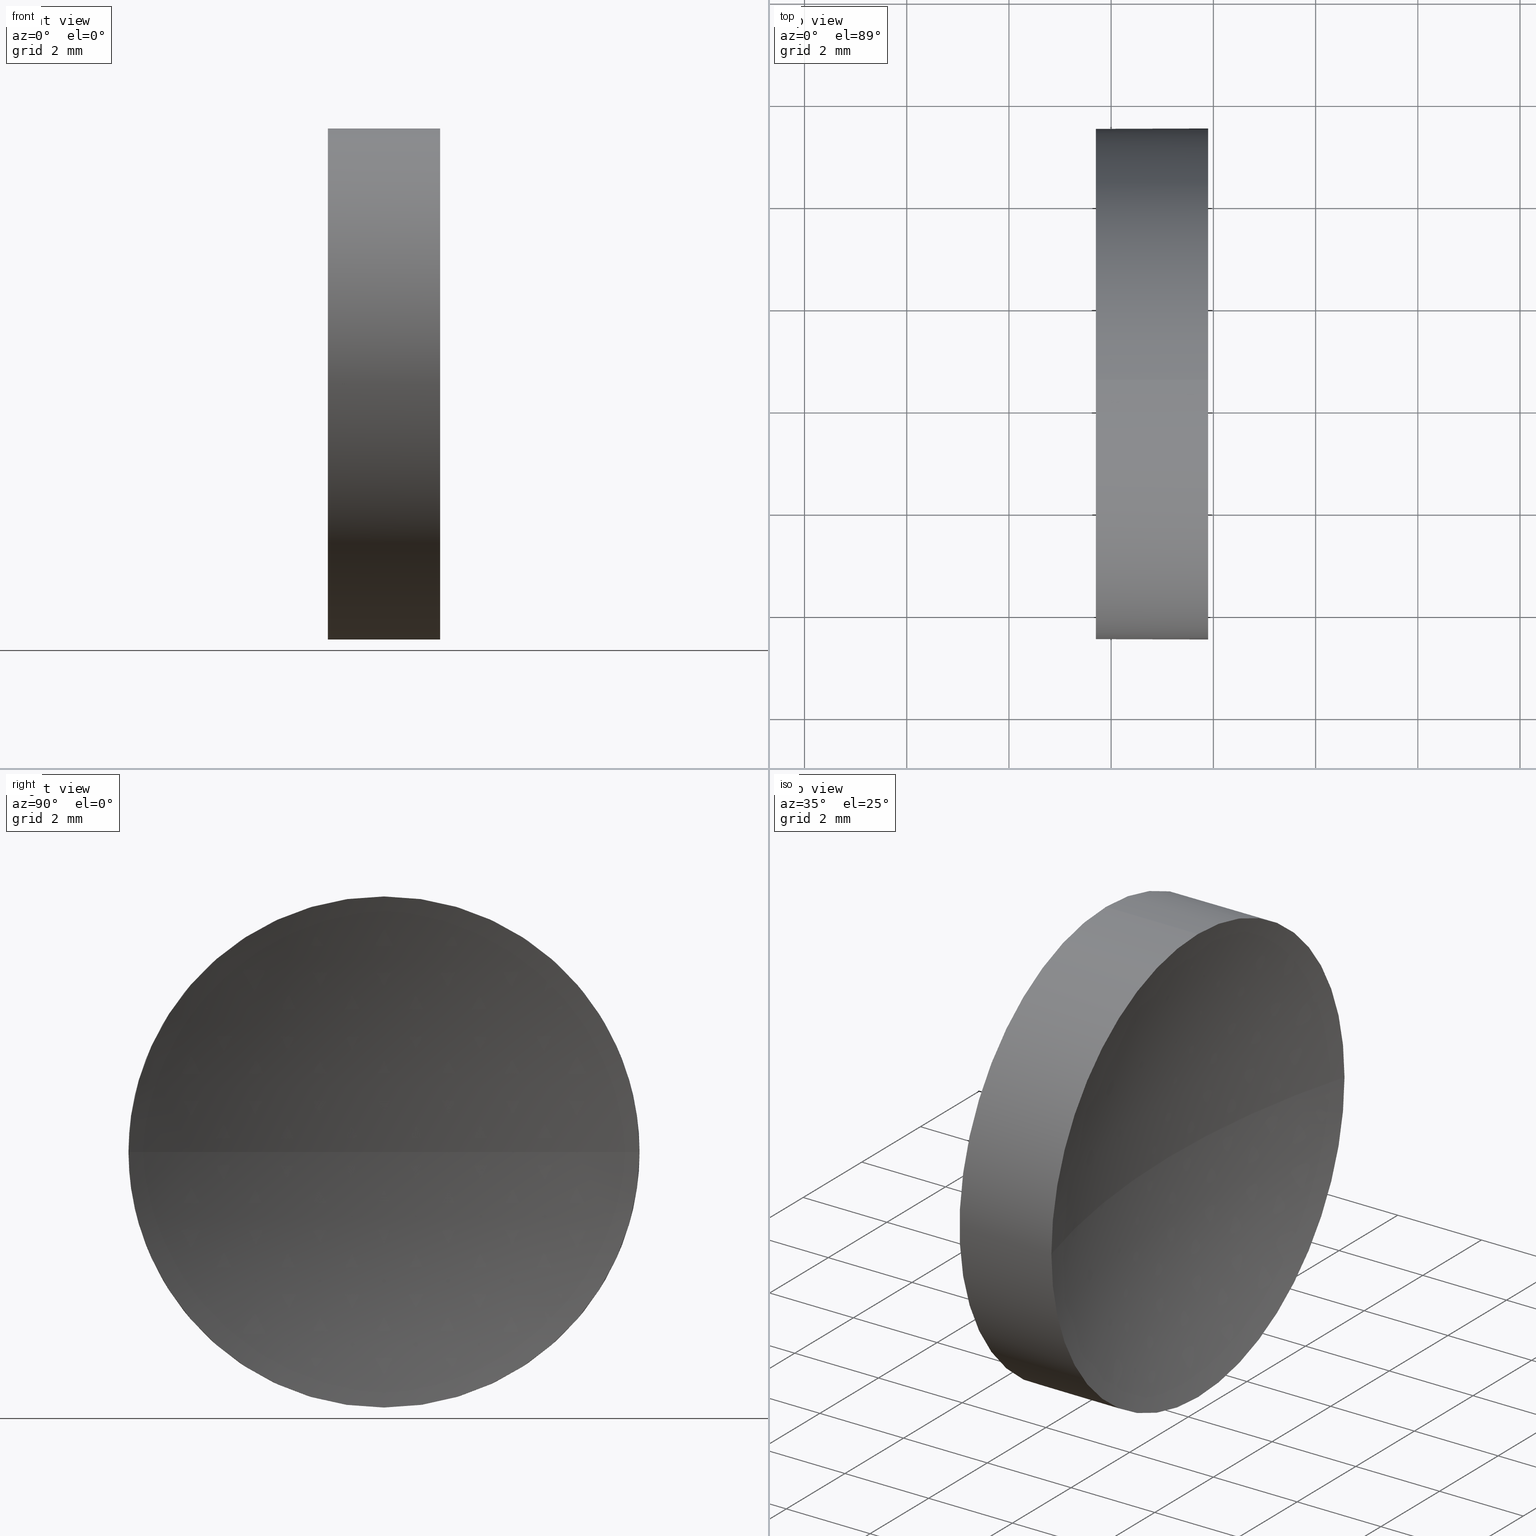
[diagram: canonical four-view strip — front | top / right | iso, engineering-drawing reading convention]
A machine part, canonical four-view strip (front | top / right | iso — engineering-drawing reading convention). The complete STEP part file that produces these views, byte-faithful:
ISO-10303-21;
HEADER;
FILE_DESCRIPTION (( 'STEP AP214' ),
    '1' );
FILE_NAME ('120255.STEP',
    '2019-06-25T01:15:55',
    ( '' ),
    ( '' ),
    'SwSTEP 2.0',
    'SolidWorks 2016',
    '' );
FILE_SCHEMA (( 'AUTOMOTIVE_DESIGN' ));
ENDSEC;

DATA;
#1 = ADVANCED_BREP_SHAPE_REPRESENTATION ( '120255', ( #156, #135 ), #66 ) ;
#2 = EDGE_CURVE ( 'NONE', #111, #73, #54, .T. ) ;
#3 = ORIENTED_EDGE ( 'NONE', *, *, #10, .F. ) ;
#4 = DIRECTION ( 'NONE',  ( -1.000000000000000000, -0.0000000000000000000, -0.0000000000000000000 ) ) ;
#5 = PRODUCT_RELATED_PRODUCT_CATEGORY ( 'part', '', ( #20 ) ) ;
#6 = PRESENTATION_STYLE_ASSIGNMENT (( #117 ) ) ;
#7 = EDGE_CURVE ( 'NONE', #159, #73, #11, .T. ) ;
#8 = CLOSED_SHELL ( 'NONE', ( #69, #98, #181, #83, #139 ) ) ;
#9 = DIRECTION ( 'NONE',  ( 0.0000000000000000000, 0.0000000000000000000, 1.000000000000000000 ) ) ;
#10 = EDGE_CURVE ( 'NONE', #107, #159, #15, .T. ) ;
#11 = LINE ( 'NONE', #175, #160 ) ;
#12 = EDGE_CURVE ( 'NONE', #107, #144, #126, .T. ) ;
#13 =( NAMED_UNIT ( * ) PLANE_ANGLE_UNIT ( ) SI_UNIT ( $, .RADIAN. ) );
#14 = PRODUCT_DEFINITION_CONTEXT ( 'detailed design', #112, 'design' ) ;
#15 = CIRCLE ( 'NONE', #37, 4.999999999999990200 ) ;
#16 = DIRECTION ( 'NONE',  ( 1.000000000000000000, 0.0000000000000000000, 0.0000000000000000000 ) ) ;
#17 = EDGE_CURVE ( 'NONE', #73, #111, #82, .T. ) ;
#18 = CARTESIAN_POINT ( 'NONE',  ( 49.20171121220714400, 28.47759563463747400, 0.0000000000000000000 ) ) ;
#19 = CARTESIAN_POINT ( 'NONE',  ( 49.89643989097209700, 28.47759563463748100, -4.999999999999990200 ) ) ;
#20 = PRODUCT ( '120255', '120255', '', ( #70 ) ) ;
#21 = DIRECTION ( 'NONE',  ( 0.0000000000000000000, 0.0000000000000000000, 1.000000000000000000 ) ) ;
#22 = CYLINDRICAL_SURFACE ( 'NONE', #97, 4.999999999999993800 ) ;
#23 = SHAPE_DEFINITION_REPRESENTATION ( #61, #1 ) ;
#24 = CARTESIAN_POINT ( 'NONE',  ( 49.89643989097209700, 28.47759563463748100, 4.999999999999990200 ) ) ;
#25 = DIRECTION ( 'NONE',  ( 0.0000000000000000000, 0.0000000000000000000, 1.000000000000000000 ) ) ;
#26 =( LENGTH_UNIT ( ) NAMED_UNIT ( * ) SI_UNIT ( .MILLI., .METRE. ) );
#27 = AXIS2_PLACEMENT_3D ( 'NONE', #168, #9, #105 ) ;
#28 = APPLICATION_PROTOCOL_DEFINITION ( 'draft international standard', 'automotive_design', 1998, #158 ) ;
#29 = CARTESIAN_POINT ( 'NONE',  ( 49.89643989097209700, 33.47759563463747400, 0.0000000000000000000 ) ) ;
#30 = CARTESIAN_POINT ( 'NONE',  ( 47.70171121220715100, 28.47759563463748100, 4.999999999999997300 ) ) ;
#31 =( LENGTH_UNIT ( ) NAMED_UNIT ( * ) SI_UNIT ( .MILLI., .METRE. ) );
#32 = EDGE_CURVE ( 'NONE', #159, #56, #89, .T. ) ;
#33 = EDGE_LOOP ( 'NONE', ( #149, #79, #76, #53 ) ) ;
#34 = CARTESIAN_POINT ( 'NONE',  ( 49.89643989097209700, 28.47759563463748100, 0.0000000000000000000 ) ) ;
#35 = UNCERTAINTY_MEASURE_WITH_UNIT (LENGTH_MEASURE( 1.000000000000000100E-005 ), #26, 'distance_accuracy_value', 'NONE');
#36 = CARTESIAN_POINT ( 'NONE',  ( 67.54171121220714700, 28.47759563463747400, 0.0000000000000000000 ) ) ;
#37 = AXIS2_PLACEMENT_3D ( 'NONE', #44, #172, #101 ) ;
#38 = DIRECTION ( 'NONE',  ( 0.0000000000000000000, 0.0000000000000000000, 1.000000000000000000 ) ) ;
#39 =( LENGTH_UNIT ( ) NAMED_UNIT ( * ) SI_UNIT ( .MILLI., .METRE. ) );
#40 =( NAMED_UNIT ( * ) SI_UNIT ( $, .STERADIAN. ) SOLID_ANGLE_UNIT ( ) );
#41 = AXIS2_PLACEMENT_3D ( 'NONE', #49, #174, #90 ) ;
#42 = ORIENTED_EDGE ( 'NONE', *, *, #10, .T. ) ;
#43 = VERTEX_POINT ( 'NONE', #24 ) ;
#44 = CARTESIAN_POINT ( 'NONE',  ( 49.89643989097209700, 28.47759563463748100, 0.0000000000000000000 ) ) ;
#45 = DIRECTION ( 'NONE',  ( -1.000000000000000000, -0.0000000000000000000, -0.0000000000000000000 ) ) ;
#46 = SURFACE_STYLE_FILL_AREA ( #92 ) ;
#47 =( NAMED_UNIT ( * ) SI_UNIT ( $, .STERADIAN. ) SOLID_ANGLE_UNIT ( ) );
#48 = MECHANICAL_DESIGN_GEOMETRIC_PRESENTATION_REPRESENTATION (  '', ( #171 ), #155 ) ;
#49 = CARTESIAN_POINT ( 'NONE',  ( 49.89643989097209700, 28.47759563463748100, 0.0000000000000000000 ) ) ;
#50 = CARTESIAN_POINT ( 'NONE',  ( 44.78209190302423800, 28.47759563463748100, 4.999999999999993800 ) ) ;
#51 = ORIENTED_EDGE ( 'NONE', *, *, #178, .F. ) ;
#52 = ORIENTED_EDGE ( 'NONE', *, *, #32, .F. ) ;
#53 = ORIENTED_EDGE ( 'NONE', *, *, #183, .F. ) ;
#54 = CIRCLE ( 'NONE', #122, 4.999999999999997300 ) ;
#55 = DIRECTION ( 'NONE',  ( -1.000000000000000000, -0.0000000000000000000, -0.0000000000000000000 ) ) ;
#56 = VERTEX_POINT ( 'NONE', #114 ) ;
#57 = SPHERICAL_SURFACE ( 'NONE', #109, 18.34000000000000300 ) ;
#58 = PRESENTATION_LAYER_ASSIGNMENT (  '', '', ( #171 ) ) ;
#59 = CIRCLE ( 'NONE', #41, 4.999999999999990200 ) ;
#60 = AXIS2_PLACEMENT_3D ( 'NONE', #74, #45, #177 ) ;
#61 = PRODUCT_DEFINITION_SHAPE ( 'NONE', 'NONE',  #151 ) ;
#62 = DIRECTION ( 'NONE',  ( 0.0000000000000000000, 0.0000000000000000000, 1.000000000000000000 ) ) ;
#63 = DIRECTION ( 'NONE',  ( 0.0000000000000000000, 1.000000000000000000, 0.0000000000000000000 ) ) ;
#64 = SURFACE_SIDE_STYLE ('',( #46 ) ) ;
#65 = DIRECTION ( 'NONE',  ( 0.0000000000000000000, 0.0000000000000000000, -1.000000000000000000 ) ) ;
#66 =( GEOMETRIC_REPRESENTATION_CONTEXT ( 3 ) GLOBAL_UNCERTAINTY_ASSIGNED_CONTEXT ( ( #35 ) ) GLOBAL_UNIT_ASSIGNED_CONTEXT ( ( #26, #13, #110 ) ) REPRESENTATION_CONTEXT ( 'NONE', 'WORKASPACE' ) );
#67 = CARTESIAN_POINT ( 'NONE',  ( 47.70171121220715100, 28.47759563463748100, 0.0000000000000000000 ) ) ;
#68 =( NAMED_UNIT ( * ) PLANE_ANGLE_UNIT ( ) SI_UNIT ( $, .RADIAN. ) );
#69 = ADVANCED_FACE ( 'NONE', ( #154 ), #22, .T. ) ;
#70 = PRODUCT_CONTEXT ( 'NONE', #158, 'mechanical' ) ;
#71 = CARTESIAN_POINT ( 'NONE',  ( 44.78209190302423800, 28.47759563463748100, 0.0000000000000000000 ) ) ;
#72 = EDGE_LOOP ( 'NONE', ( #152, #52, #3, #145 ) ) ;
#73 = VERTEX_POINT ( 'NONE', #134 ) ;
#74 = CARTESIAN_POINT ( 'NONE',  ( 44.78209190302423800, 28.47759563463748100, 0.0000000000000000000 ) ) ;
#75 = STYLED_ITEM ( 'NONE', ( #99 ), #1 ) ;
#76 = ORIENTED_EDGE ( 'NONE', *, *, #12, .F. ) ;
#77 = COLOUR_RGB ( '',1.000000000000000000, 1.000000000000000000, 1.000000000000000000 ) ;
#78 = EDGE_LOOP ( 'NONE', ( #142, #87 ) ) ;
#79 = ORIENTED_EDGE ( 'NONE', *, *, #148, .T. ) ;
#80 =( GEOMETRIC_REPRESENTATION_CONTEXT ( 3 ) GLOBAL_UNCERTAINTY_ASSIGNED_CONTEXT ( ( #91 ) ) GLOBAL_UNIT_ASSIGNED_CONTEXT ( ( #39, #68, #40 ) ) REPRESENTATION_CONTEXT ( 'NONE', 'WORKASPACE' ) );
#81 = LINE ( 'NONE', #50, #88 ) ;
#82 = CIRCLE ( 'NONE', #137, 4.999999999999997300 ) ;
#83 = ADVANCED_FACE ( 'NONE', ( #169 ), #131, .T. ) ;
#84 = FILL_AREA_STYLE ('',( #129 ) ) ;
#85 = MECHANICAL_DESIGN_GEOMETRIC_PRESENTATION_REPRESENTATION (  '', ( #75 ), #80 ) ;
#86 = ORIENTED_EDGE ( 'NONE', *, *, #183, .T. ) ;
#87 = ORIENTED_EDGE ( 'NONE', *, *, #17, .T. ) ;
#88 = VECTOR ( 'NONE', #102, 1000.000000000000000 ) ;
#89 = CIRCLE ( 'NONE', #133, 4.999999999999990200 ) ;
#90 = DIRECTION ( 'NONE',  ( 0.0000000000000000000, 0.0000000000000000000, 1.000000000000000000 ) ) ;
#91 = UNCERTAINTY_MEASURE_WITH_UNIT (LENGTH_MEASURE( 1.000000000000000100E-005 ), #39, 'distance_accuracy_value', 'NONE');
#92 = FILL_AREA_STYLE ('',( #132 ) ) ;
#93 = COLOUR_RGB ( '',1.000000000000000000, 1.000000000000000000, 1.000000000000000000 ) ;
#94 = FACE_OUTER_BOUND ( 'NONE', #33, .T. ) ;
#95 = PRODUCT_DEFINITION_FORMATION_WITH_SPECIFIED_SOURCE ( '�κ�', '', #20, .NOT_KNOWN. ) ;
#96 = DIRECTION ( 'NONE',  ( -1.000000000000000000, -0.0000000000000000000, -0.0000000000000000000 ) ) ;
#97 = AXIS2_PLACEMENT_3D ( 'NONE', #71, #96, #25 ) ;
#98 = ADVANCED_FACE ( 'NONE', ( #94 ), #120, .F. ) ;
#99 = PRESENTATION_STYLE_ASSIGNMENT (( #182 ) ) ;
#100 = DIRECTION ( 'NONE',  ( 1.000000000000000000, 0.0000000000000000000, 0.0000000000000000000 ) ) ;
#101 = DIRECTION ( 'NONE',  ( 0.0000000000000000000, 0.0000000000000000000, 1.000000000000000000 ) ) ;
#102 = DIRECTION ( 'NONE',  ( -1.000000000000000000, -0.0000000000000000000, -0.0000000000000000000 ) ) ;
#103 = AXIS2_PLACEMENT_3D ( 'NONE', #36, #104, #165 ) ;
#104 = DIRECTION ( 'NONE',  ( 0.0000000000000000000, 0.0000000000000000000, -1.000000000000000000 ) ) ;
#105 = DIRECTION ( 'NONE',  ( 1.000000000000000000, 0.0000000000000000000, 0.0000000000000000000 ) ) ;
#106 = ORIENTED_EDGE ( 'NONE', *, *, #140, .T. ) ;
#107 = VERTEX_POINT ( 'NONE', #29 ) ;
#108 = SURFACE_SIDE_STYLE ('',( #138 ) ) ;
#109 = AXIS2_PLACEMENT_3D ( 'NONE', #173, #65, #63 ) ;
#110 =( NAMED_UNIT ( * ) SI_UNIT ( $, .STERADIAN. ) SOLID_ANGLE_UNIT ( ) );
#111 = VERTEX_POINT ( 'NONE', #30 ) ;
#112 = APPLICATION_CONTEXT ( 'automotive_design' ) ;
#113 = ORIENTED_EDGE ( 'NONE', *, *, #17, .F. ) ;
#114 = CARTESIAN_POINT ( 'NONE',  ( 49.89643989097209700, 23.47759563463748500, -6.123233995736754400E-016 ) ) ;
#115 = DIRECTION ( 'NONE',  ( 0.0000000000000000000, 0.0000000000000000000, -1.000000000000000000 ) ) ;
#116 = PLANE ( 'NONE',  #141 ) ;
#117 = SURFACE_STYLE_USAGE ( .BOTH. , #64 ) ;
#118 = ORIENTED_EDGE ( 'NONE', *, *, #2, .F. ) ;
#119 = DIRECTION ( 'NONE',  ( -1.000000000000000000, -0.0000000000000000000, -0.0000000000000000000 ) ) ;
#120 = SPHERICAL_SURFACE ( 'NONE', #103, 18.34000000000000300 ) ;
#121 = UNCERTAINTY_MEASURE_WITH_UNIT (LENGTH_MEASURE( 1.000000000000000100E-005 ), #31, 'distance_accuracy_value', 'NONE');
#122 = AXIS2_PLACEMENT_3D ( 'NONE', #136, #55, #147 ) ;
#123 = EDGE_LOOP ( 'NONE', ( #42, #186, #118, #51, #86 ) ) ;
#124 = CARTESIAN_POINT ( 'NONE',  ( 49.89643989097209700, 28.47759563463748100, 0.0000000000000000000 ) ) ;
#125 = FACE_OUTER_BOUND ( 'NONE', #72, .T. ) ;
#126 = CIRCLE ( 'NONE', #27, 18.33999999999999600 ) ;
#127 = APPLICATION_PROTOCOL_DEFINITION ( 'draft international standard', 'automotive_design', 1998, #112 ) ;
#128 = CARTESIAN_POINT ( 'NONE',  ( 0.0000000000000000000, 0.0000000000000000000, 0.0000000000000000000 ) ) ;
#129 = FILL_AREA_STYLE_COLOUR ( '', #93 ) ;
#130 = CIRCLE ( 'NONE', #167, 4.999999999999990200 ) ;
#131 = CYLINDRICAL_SURFACE ( 'NONE', #60, 4.999999999999993800 ) ;
#132 = FILL_AREA_STYLE_COLOUR ( '', #77 ) ;
#133 = AXIS2_PLACEMENT_3D ( 'NONE', #34, #119, #21 ) ;
#134 = CARTESIAN_POINT ( 'NONE',  ( 47.70171121220715100, 28.47759563463748100, -4.999999999999997300 ) ) ;
#135 = AXIS2_PLACEMENT_3D ( 'NONE', #128, #62, #100 ) ;
#136 = CARTESIAN_POINT ( 'NONE',  ( 47.70171121220715100, 28.47759563463748100, 0.0000000000000000000 ) ) ;
#137 = AXIS2_PLACEMENT_3D ( 'NONE', #67, #153, #170 ) ;
#138 = SURFACE_STYLE_FILL_AREA ( #84 ) ;
#139 = ADVANCED_FACE ( 'NONE', ( #166 ), #116, .F. ) ;
#140 = EDGE_CURVE ( 'NONE', #56, #43, #59, .T. ) ;
#141 = AXIS2_PLACEMENT_3D ( 'NONE', #164, #16, #115 ) ;
#142 = ORIENTED_EDGE ( 'NONE', *, *, #2, .T. ) ;
#143 = DIRECTION ( 'NONE',  ( 0.0000000000000000000, 1.224646799147353200E-016, -1.000000000000000000 ) ) ;
#144 = VERTEX_POINT ( 'NONE', #18 ) ;
#145 = ORIENTED_EDGE ( 'NONE', *, *, #12, .T. ) ;
#146 = ORIENTED_EDGE ( 'NONE', *, *, #7, .F. ) ;
#147 = DIRECTION ( 'NONE',  ( 0.0000000000000000000, 0.0000000000000000000, 1.000000000000000000 ) ) ;
#148 = EDGE_CURVE ( 'NONE', #56, #144, #150, .T. ) ;
#149 = ORIENTED_EDGE ( 'NONE', *, *, #140, .F. ) ;
#150 = CIRCLE ( 'NONE', #163, 18.34000000000000300 ) ;
#151 = PRODUCT_DEFINITION ( 'δ֪', '', #95, #14 ) ;
#152 = ORIENTED_EDGE ( 'NONE', *, *, #148, .F. ) ;
#153 = DIRECTION ( 'NONE',  ( -1.000000000000000000, -0.0000000000000000000, -0.0000000000000000000 ) ) ;
#154 = FACE_OUTER_BOUND ( 'NONE', #123, .T. ) ;
#155 =( GEOMETRIC_REPRESENTATION_CONTEXT ( 3 ) GLOBAL_UNCERTAINTY_ASSIGNED_CONTEXT ( ( #121 ) ) GLOBAL_UNIT_ASSIGNED_CONTEXT ( ( #31, #162, #47 ) ) REPRESENTATION_CONTEXT ( 'NONE', 'WORKASPACE' ) );
#156 = MANIFOLD_SOLID_BREP ( '��ת1', #8 ) ;
#157 = ORIENTED_EDGE ( 'NONE', *, *, #32, .T. ) ;
#158 = APPLICATION_CONTEXT ( 'automotive_design' ) ;
#159 = VERTEX_POINT ( 'NONE', #19 ) ;
#160 = VECTOR ( 'NONE', #4, 1000.000000000000000 ) ;
#161 = DIRECTION ( 'NONE',  ( 0.0000000000000000000, 1.000000000000000000, 1.224646799147353000E-016 ) ) ;
#162 =( NAMED_UNIT ( * ) PLANE_ANGLE_UNIT ( ) SI_UNIT ( $, .RADIAN. ) );
#163 = AXIS2_PLACEMENT_3D ( 'NONE', #185, #143, #161 ) ;
#164 = CARTESIAN_POINT ( 'NONE',  ( 47.70171121220715100, 28.47759563463748100, 0.0000000000000000000 ) ) ;
#165 = DIRECTION ( 'NONE',  ( 0.0000000000000000000, 1.000000000000000000, 0.0000000000000000000 ) ) ;
#166 = FACE_OUTER_BOUND ( 'NONE', #78, .T. ) ;
#167 = AXIS2_PLACEMENT_3D ( 'NONE', #124, #176, #38 ) ;
#168 = CARTESIAN_POINT ( 'NONE',  ( 67.54171121220714700, 28.47759563463747400, 0.0000000000000000000 ) ) ;
#169 = FACE_OUTER_BOUND ( 'NONE', #184, .T. ) ;
#170 = DIRECTION ( 'NONE',  ( 0.0000000000000000000, 0.0000000000000000000, 1.000000000000000000 ) ) ;
#171 = STYLED_ITEM ( 'NONE', ( #6 ), #156 ) ;
#172 = DIRECTION ( 'NONE',  ( -1.000000000000000000, -0.0000000000000000000, -0.0000000000000000000 ) ) ;
#173 = CARTESIAN_POINT ( 'NONE',  ( 67.54171121220714700, 28.47759563463747400, 0.0000000000000000000 ) ) ;
#174 = DIRECTION ( 'NONE',  ( -1.000000000000000000, -0.0000000000000000000, -0.0000000000000000000 ) ) ;
#175 = CARTESIAN_POINT ( 'NONE',  ( 44.78209190302423800, 28.47759563463748100, -4.999999999999993800 ) ) ;
#176 = DIRECTION ( 'NONE',  ( -1.000000000000000000, -0.0000000000000000000, -0.0000000000000000000 ) ) ;
#177 = DIRECTION ( 'NONE',  ( 0.0000000000000000000, 0.0000000000000000000, 1.000000000000000000 ) ) ;
#178 = EDGE_CURVE ( 'NONE', #43, #111, #81, .T. ) ;
#179 = ORIENTED_EDGE ( 'NONE', *, *, #178, .T. ) ;
#180 = PRESENTATION_LAYER_ASSIGNMENT (  '', '', ( #75 ) ) ;
#181 = ADVANCED_FACE ( 'NONE', ( #125 ), #57, .F. ) ;
#182 = SURFACE_STYLE_USAGE ( .BOTH. , #108 ) ;
#183 = EDGE_CURVE ( 'NONE', #43, #107, #130, .T. ) ;
#184 = EDGE_LOOP ( 'NONE', ( #146, #157, #106, #179, #113 ) ) ;
#185 = CARTESIAN_POINT ( 'NONE',  ( 67.54171121220714700, 28.47759563463747400, 0.0000000000000000000 ) ) ;
#186 = ORIENTED_EDGE ( 'NONE', *, *, #7, .T. ) ;
ENDSEC;
END-ISO-10303-21;
